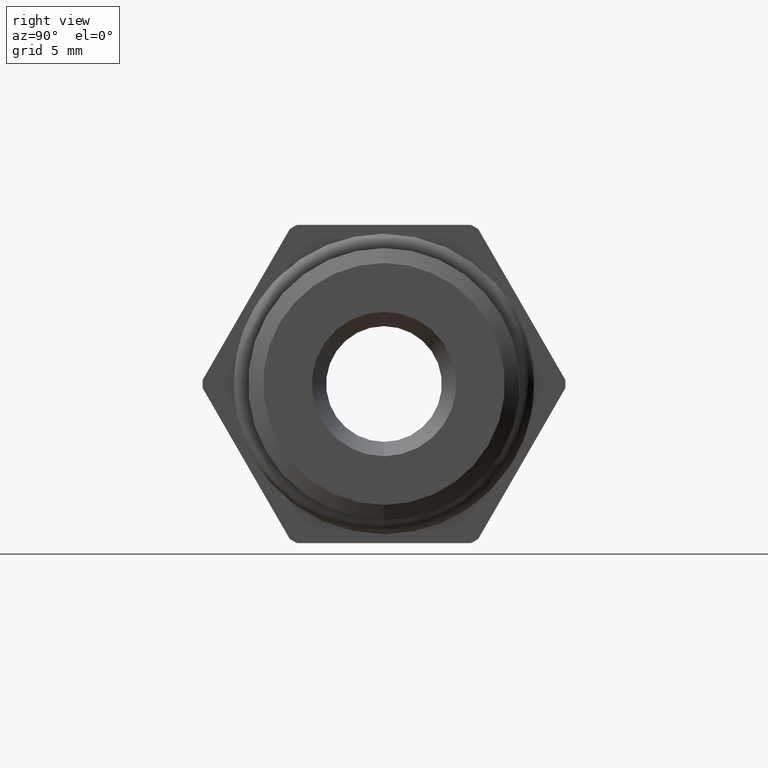
[diagram: clean part render]
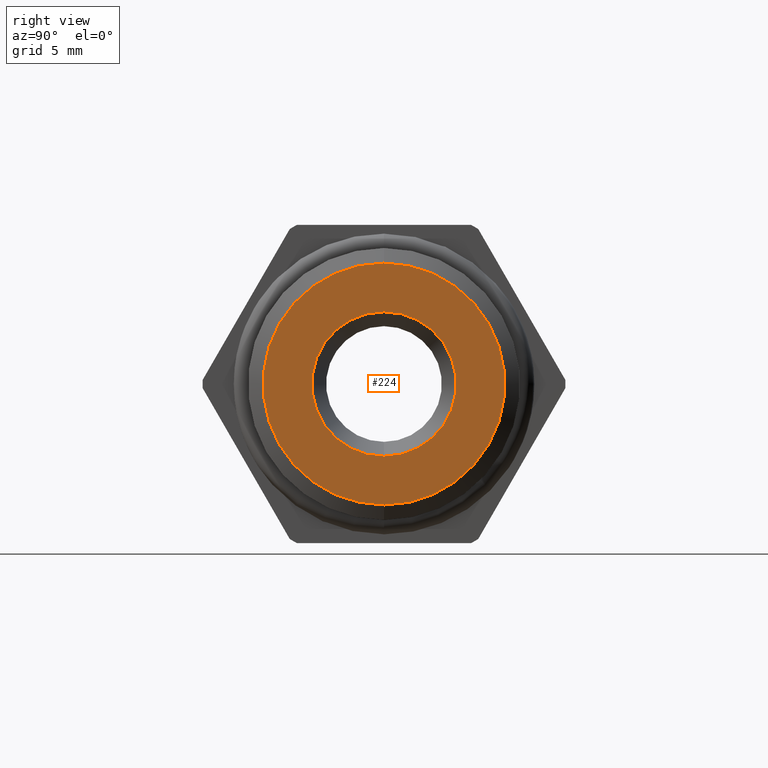
[diagram: same view with one face highlighted and labeled with its STEP entity id]
A machine part, right view. The second image highlights one B-rep face of the part: STEP entity #224.
In plain terms, the highlighted planar face has unit normal (-1, 0, 0).
Its self-contained STEP definition (entity closure, byte-faithful):
#134 = EDGE_CURVE ( 'NONE', #135, #139, #1506, .T. ) ;
#135 = VERTEX_POINT ( 'NONE', #1501 ) ;
#139 = VERTEX_POINT ( 'NONE', #1500 ) ;
#162 = VERTEX_POINT ( 'NONE', #1518 ) ;
#166 = EDGE_CURVE ( 'NONE', #167, #162, #1509, .T. ) ;
#167 = VERTEX_POINT ( 'NONE', #1566 ) ;
#221 = ORIENTED_EDGE ( 'NONE', *, *, #166, .T. ) ;
#222 = EDGE_LOOP ( 'NONE', ( #292, #283 ) ) ;
#224 = ADVANCED_FACE ( 'NONE', ( #1661, #1660 ), #1659, .F. ) ;
#225 = EDGE_LOOP ( 'NONE', ( #221, #232 ) ) ;
#232 = ORIENTED_EDGE ( 'NONE', *, *, #233, .T. ) ;
#233 = EDGE_CURVE ( 'NONE', #162, #167, #1643, .T. ) ;
#283 = ORIENTED_EDGE ( 'NONE', *, *, #290, .F. ) ;
#290 = EDGE_CURVE ( 'NONE', #139, #135, #1793, .T. ) ;
#292 = ORIENTED_EDGE ( 'NONE', *, *, #134, .F. ) ;
#1500 = CARTESIAN_POINT ( 'NONE',  ( 0.4749999999999999800, 2.718804836760988600E-017, -0.2090177543249446800 ) ) ;
#1501 = CARTESIAN_POINT ( 'NONE',  ( 0.4749999999999999800, 0.0000000000000000000, 0.2090177543249446800 ) ) ;
#1502 = DIRECTION ( 'NONE',  ( 0.0000000000000000000, 0.0000000000000000000, 1.000000000000000000 ) ) ;
#1503 = DIRECTION ( 'NONE',  ( -1.000000000000000000, 0.0000000000000000000, 0.0000000000000000000 ) ) ;
#1504 = CARTESIAN_POINT ( 'NONE',  ( 0.4749999999999999800, 0.0000000000000000000, 0.0000000000000000000 ) ) ;
#1505 = AXIS2_PLACEMENT_3D ( 'NONE', #1504, #1503, #1502 ) ;
#1506 = CIRCLE ( 'NONE', #1505, 0.2090177543249446800 ) ;
#1508 = AXIS2_PLACEMENT_3D ( 'NONE', #1569, #1568, #1567 ) ;
#1509 = CIRCLE ( 'NONE', #1508, 0.1248936951594448500 ) ;
#1518 = CARTESIAN_POINT ( 'NONE',  ( 0.4750000000000002600, 1.529506640106994300E-017, 0.1248936951594448500 ) ) ;
#1566 = CARTESIAN_POINT ( 'NONE',  ( 0.4750000000000002600, 0.0000000000000000000, -0.1248936951594448500 ) ) ;
#1567 = DIRECTION ( 'NONE',  ( 0.0000000000000000000, 0.0000000000000000000, 1.000000000000000000 ) ) ;
#1568 = DIRECTION ( 'NONE',  ( -1.000000000000000000, 0.0000000000000000000, 0.0000000000000000000 ) ) ;
#1569 = CARTESIAN_POINT ( 'NONE',  ( 0.4750000000000002600, 0.0000000000000000000, 0.0000000000000000000 ) ) ;
#1639 = DIRECTION ( 'NONE',  ( 0.0000000000000000000, 0.0000000000000000000, 1.000000000000000000 ) ) ;
#1640 = DIRECTION ( 'NONE',  ( -1.000000000000000000, 0.0000000000000000000, 0.0000000000000000000 ) ) ;
#1641 = CARTESIAN_POINT ( 'NONE',  ( 0.4750000000000002600, 0.0000000000000000000, 0.0000000000000000000 ) ) ;
#1642 = AXIS2_PLACEMENT_3D ( 'NONE', #1641, #1640, #1639 ) ;
#1643 = CIRCLE ( 'NONE', #1642, 0.1248936951594448500 ) ;
#1655 = DIRECTION ( 'NONE',  ( 0.0000000000000000000, 0.0000000000000000000, 1.000000000000000000 ) ) ;
#1656 = DIRECTION ( 'NONE',  ( -1.000000000000000000, 0.0000000000000000000, 0.0000000000000000000 ) ) ;
#1657 = CARTESIAN_POINT ( 'NONE',  ( 0.4749999999999999800, 0.2349965093414956900, 0.0000000000000000000 ) ) ;
#1658 = AXIS2_PLACEMENT_3D ( 'NONE', #1657, #1656, #1655 ) ;
#1659 = PLANE ( 'NONE',  #1658 ) ;
#1660 = FACE_OUTER_BOUND ( 'NONE', #222, .T. ) ;
#1661 = FACE_BOUND ( 'NONE', #225, .T. ) ;
#1789 = DIRECTION ( 'NONE',  ( 0.0000000000000000000, 0.0000000000000000000, 1.000000000000000000 ) ) ;
#1790 = DIRECTION ( 'NONE',  ( -1.000000000000000000, 0.0000000000000000000, 0.0000000000000000000 ) ) ;
#1791 = CARTESIAN_POINT ( 'NONE',  ( 0.4749999999999999800, 0.0000000000000000000, 0.0000000000000000000 ) ) ;
#1792 = AXIS2_PLACEMENT_3D ( 'NONE', #1791, #1790, #1789 ) ;
#1793 = CIRCLE ( 'NONE', #1792, 0.2090177543249446800 ) ;